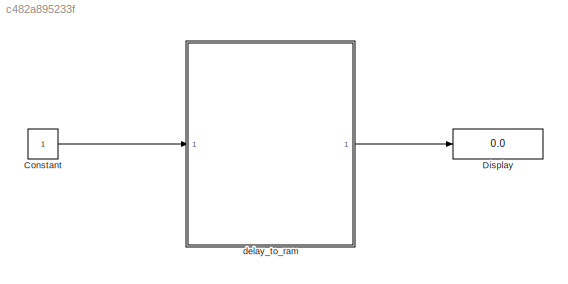
MODEL slx_c482a895233f
KIND model
CONFIG AbsTol = auto
CONFIG EnableMultiTasking = off
CONFIG FixedStep = auto
CONFIG MaxStep = auto
CONFIG MinStep = auto
CONFIG RelTol = 1e-3
CONFIG SampleTimeConstraint = Unconstrained
CONFIG SolverName = FixedStepDiscrete
CONFIG StartTime = 0.0
CONFIG StopTime = 2000/100e6
BLOCK [Constant] Constant
  OutDataTypeStr = int32
  SampleTime = 1/100e6
BLOCK [Display] Display
  Decimation = 1
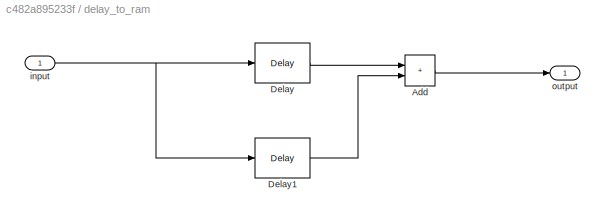
BLOCK [SubSystem] delay_to_ram
  TreatAsAtomicUnit = on
BLOCK [Sum] delay_to_ram/Add
  IconShape = rectangular
BLOCK [Delay] delay_to_ram/Delay
  DelayLength = 1024
  InitialCondition = 0
  InputPortMap = u0
  UseCircularBuffer = on
  UserDataPersistent = on
BLOCK [Delay] delay_to_ram/Delay1
  DelayLength = 1
  InitialCondition = 0
  InputPortMap = u0
  UseCircularBuffer = on
  UserDataPersistent = on
BLOCK [Inport] delay_to_ram/input
BLOCK [Outport] delay_to_ram/output
LINE Constant:1 -> delay_to_ram:1
LINE delay_to_ram/Add:1 -> delay_to_ram/output:1
LINE delay_to_ram/Delay1:1 -> delay_to_ram/Add:2
LINE delay_to_ram/Delay:1 -> delay_to_ram/Add:1
NET delay_to_ram/input:1 -> delay_to_ram/Delay1:1, delay_to_ram/Delay:1
LINE delay_to_ram:1 -> Display:1
note: NET lines group one-source signal fan-out (src -> all destinations, sorted); 1:1 wires keep LINE
